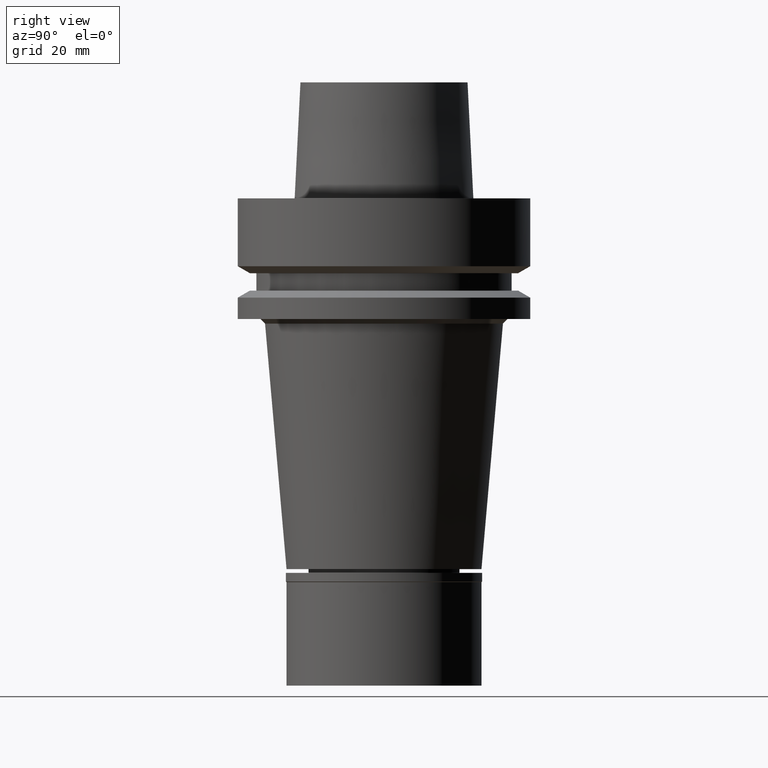
[diagram: clean part render]
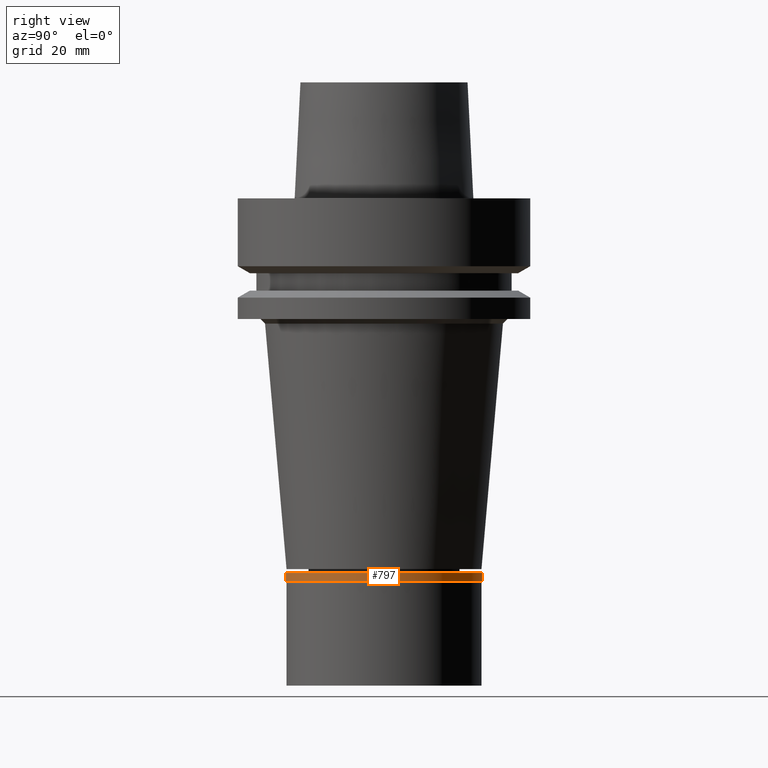
[diagram: same view with one face highlighted and labeled with its STEP entity id]
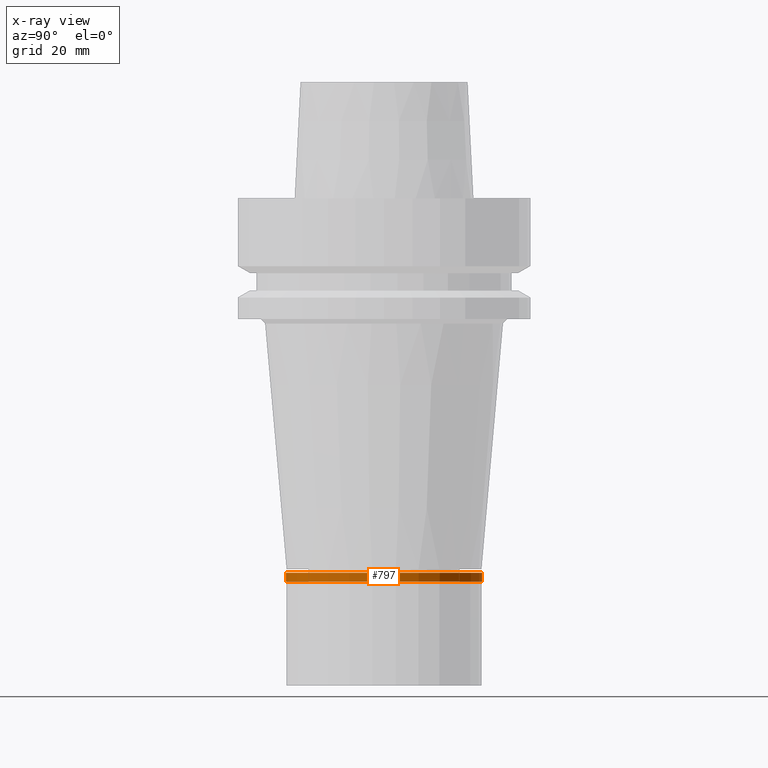
[diagram: x-ray of the same camera — body ghosted, the highlighted face saturated]
A machine part, right view. The second image highlights one B-rep face of the part: STEP entity #797.
The next image is the same camera in x-ray: the body ghosted, the highlighted face saturated — about 0% of this face is hidden behind the body in this view.
In plain terms, the highlighted cylindrical surface (partial cylindrical patch) has radius 21.15 mm, axis along (0, 0, -1).
Its self-contained STEP definition (entity closure, byte-faithful):
#77 = CARTESIAN_POINT ( 'NONE',  ( 0.0000000000000000000, 0.0000000000000000000, 0.0000000000000000000 ) ) ;
#89 = CARTESIAN_POINT ( 'NONE',  ( 0.0000000000000000000, -21.14999999999999858, 0.0000000000000000000 ) ) ;
#147 = AXIS2_PLACEMENT_3D ( 'NONE', #77, #2506, #348 ) ;
#176 = ORIENTED_EDGE ( 'NONE', *, *, #2656, .F. ) ;
#278 = EDGE_LOOP ( 'NONE', ( #645, #2211, #956, #176 ) ) ;
#341 = VERTEX_POINT ( 'NONE', #2184 ) ;
#348 = DIRECTION ( 'NONE',  ( 0.0000000000000000000, 1.000000000000000000, 0.0000000000000000000 ) ) ;
#394 = LINE ( 'NONE', #1292, #1276 ) ;
#427 = AXIS2_PLACEMENT_3D ( 'NONE', #2644, #1104, #2628 ) ;
#586 = CARTESIAN_POINT ( 'NONE',  ( 0.0000000000000000000, 0.0000000000000000000, -1.850000000000000089 ) ) ;
#612 = DIRECTION ( 'NONE',  ( 0.0000000000000000000, 0.0000000000000000000, -1.000000000000000000 ) ) ;
#634 = EDGE_CURVE ( 'NONE', #341, #2075, #1198, .T. ) ;
#645 = ORIENTED_EDGE ( 'NONE', *, *, #2279, .T. ) ;
#797 = ADVANCED_FACE ( 'NONE', ( #2404 ), #1757, .T. ) ;
#914 = CARTESIAN_POINT ( 'NONE',  ( 0.0000000000000000000, 21.14999999999999858, 0.0000000000000000000 ) ) ;
#935 = CARTESIAN_POINT ( 'NONE',  ( 0.0000000000000000000, -21.14999999999999858, -1.850000000000000089 ) ) ;
#956 = ORIENTED_EDGE ( 'NONE', *, *, #2495, .T. ) ;
#965 = VERTEX_POINT ( 'NONE', #1819 ) ;
#1104 = DIRECTION ( 'NONE',  ( 0.0000000000000000000, 0.0000000000000000000, -1.000000000000000000 ) ) ;
#1198 = LINE ( 'NONE', #89, #2552 ) ;
#1276 = VECTOR ( 'NONE', #612, 1000.000000000000000 ) ;
#1292 = CARTESIAN_POINT ( 'NONE',  ( 0.0000000000000000000, 21.14999999999999858, 0.0000000000000000000 ) ) ;
#1485 = VERTEX_POINT ( 'NONE', #914 ) ;
#1490 = DIRECTION ( 'NONE',  ( 0.0000000000000000000, 0.0000000000000000000, 1.000000000000000000 ) ) ;
#1757 = CYLINDRICAL_SURFACE ( 'NONE', #427, 21.14999999999999858 ) ;
#1819 = CARTESIAN_POINT ( 'NONE',  ( 0.0000000000000000000, 21.14999999999999858, -1.850000000000000089 ) ) ;
#1832 = AXIS2_PLACEMENT_3D ( 'NONE', #586, #1490, #2353 ) ;
#2075 = VERTEX_POINT ( 'NONE', #935 ) ;
#2184 = CARTESIAN_POINT ( 'NONE',  ( 0.0000000000000000000, -21.14999999999999858, 0.0000000000000000000 ) ) ;
#2195 = CIRCLE ( 'NONE', #147, 21.14999999999999858 ) ;
#2211 = ORIENTED_EDGE ( 'NONE', *, *, #634, .T. ) ;
#2279 = EDGE_CURVE ( 'NONE', #1485, #341, #2195, .T. ) ;
#2353 = DIRECTION ( 'NONE',  ( 0.0000000000000000000, -1.000000000000000000, 0.0000000000000000000 ) ) ;
#2404 = FACE_OUTER_BOUND ( 'NONE', #278, .T. ) ;
#2495 = EDGE_CURVE ( 'NONE', #2075, #965, #2501, .T. ) ;
#2501 = CIRCLE ( 'NONE', #1832, 21.14999999999999858 ) ;
#2506 = DIRECTION ( 'NONE',  ( 0.0000000000000000000, 0.0000000000000000000, -1.000000000000000000 ) ) ;
#2520 = DIRECTION ( 'NONE',  ( 0.0000000000000000000, 0.0000000000000000000, -1.000000000000000000 ) ) ;
#2552 = VECTOR ( 'NONE', #2520, 1000.000000000000000 ) ;
#2628 = DIRECTION ( 'NONE',  ( 0.0000000000000000000, -1.000000000000000000, 0.0000000000000000000 ) ) ;
#2644 = CARTESIAN_POINT ( 'NONE',  ( 0.0000000000000000000, 0.0000000000000000000, 0.0000000000000000000 ) ) ;
#2656 = EDGE_CURVE ( 'NONE', #1485, #965, #394, .T. ) ;